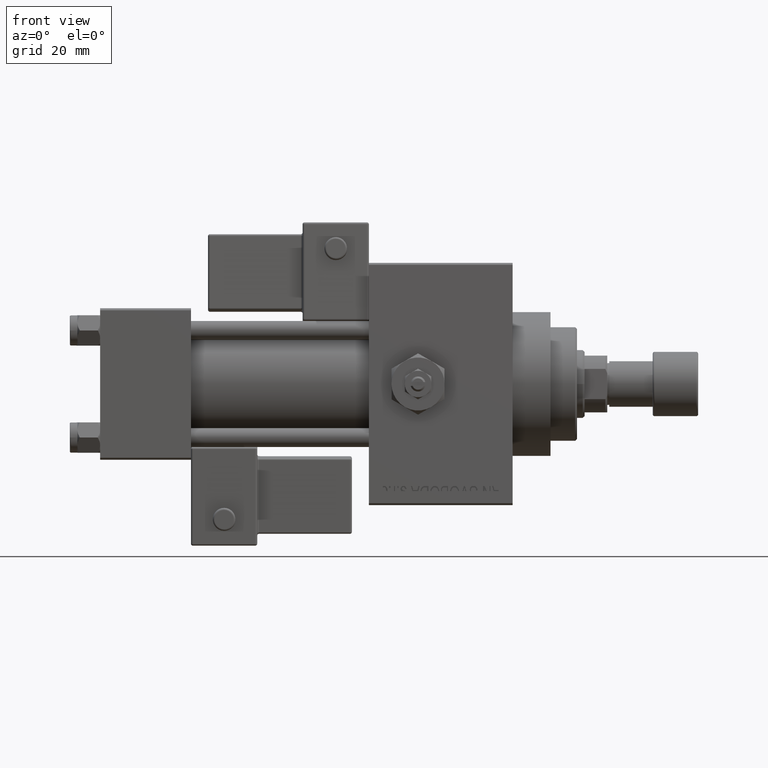
[diagram: clean part render]
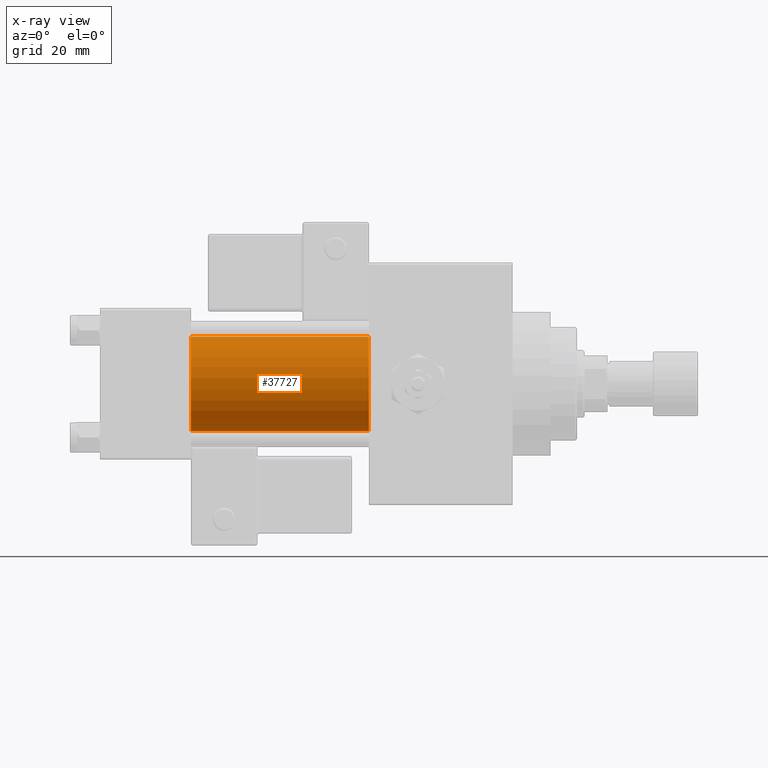
[diagram: x-ray — body ghosted, one internal face saturated and labeled with its STEP entity id]
A machine part, front view, then the same camera in x-ray: the body is ghosted and one INTERNAL B-rep face — a face not visible from any outside direction — is saturated and labeled: STEP entity #37727.
In plain terms, the highlighted cylindrical surface (partial cylindrical patch) has radius 12.5 mm, axis along (-1, -0, -0).
Its self-contained STEP definition (entity closure, byte-faithful):
#356 = VERTEX_POINT ( 'NONE', #11229 ) ;
#1348 = CIRCLE ( 'NONE', #7972, 12.49999999999999645 ) ;
#3030 = DIRECTION ( 'NONE',  ( 1.000000000000000000, 0.000000000000000000, 0.000000000000000000 ) ) ;
#3527 = CARTESIAN_POINT ( 'NONE',  ( 71.00000000000001421, -2.602085213965210642E-15, 0.000000000000000000 ) ) ;
#3976 = ORIENTED_EDGE ( 'NONE', *, *, #26909, .F. ) ;
#6274 = DIRECTION ( 'NONE',  ( -1.000000000000000000, -0.000000000000000000, -0.000000000000000000 ) ) ;
#7147 = DIRECTION ( 'NONE',  ( 0.000000000000000000, 0.000000000000000000, -1.000000000000000000 ) ) ;
#7972 = AXIS2_PLACEMENT_3D ( 'NONE', #3527, #3030, #39179 ) ;
#9218 = EDGE_CURVE ( 'NONE', #27550, #40213, #1348, .T. ) ;
#10141 = ORIENTED_EDGE ( 'NONE', *, *, #9218, .T. ) ;
#11229 = CARTESIAN_POINT ( 'NONE',  ( 24.00000000000000000, -2.602085213965210642E-15, 12.49999999999999645 ) ) ;
#12887 = DIRECTION ( 'NONE',  ( 0.000000000000000000, 0.000000000000000000, 1.000000000000000000 ) ) ;
#14077 = CARTESIAN_POINT ( 'NONE',  ( 71.00000000000001421, -1.071276715031019515E-15, -12.49999999999999645 ) ) ;
#15085 = ORIENTED_EDGE ( 'NONE', *, *, #39363, .T. ) ;
#16110 = DIRECTION ( 'NONE',  ( -1.000000000000000000, -0.000000000000000000, -0.000000000000000000 ) ) ;
#16786 = DIRECTION ( 'NONE',  ( -1.000000000000000000, -0.000000000000000000, -0.000000000000000000 ) ) ;
#17310 = FACE_OUTER_BOUND ( 'NONE', #22735, .T. ) ;
#17823 = CARTESIAN_POINT ( 'NONE',  ( 71.00000000000001421, -2.602085213965210642E-15, 0.000000000000000000 ) ) ;
#18237 = CARTESIAN_POINT ( 'NONE',  ( 71.00000000000001421, -1.071276715031019515E-15, -12.49999999999999645 ) ) ;
#18486 = LINE ( 'NONE', #18237, #34423 ) ;
#20707 = CYLINDRICAL_SURFACE ( 'NONE', #37172, 12.49999999999999645 ) ;
#22735 = EDGE_LOOP ( 'NONE', ( #10141, #15085, #27779, #3976 ) ) ;
#23933 = CARTESIAN_POINT ( 'NONE',  ( 71.00000000000001421, -2.602085213965210642E-15, 12.49999999999999645 ) ) ;
#24708 = AXIS2_PLACEMENT_3D ( 'NONE', #38633, #30811, #7147 ) ;
#25347 = CARTESIAN_POINT ( 'NONE',  ( 71.00000000000001421, -2.602085213965210642E-15, 12.49999999999999645 ) ) ;
#26518 = VERTEX_POINT ( 'NONE', #39677 ) ;
#26909 = EDGE_CURVE ( 'NONE', #27550, #356, #47362, .T. ) ;
#27550 = VERTEX_POINT ( 'NONE', #25347 ) ;
#27779 = ORIENTED_EDGE ( 'NONE', *, *, #50662, .F. ) ;
#29362 = VECTOR ( 'NONE', #16110, 1000.000000000000000 ) ;
#30811 = DIRECTION ( 'NONE',  ( 1.000000000000000000, 0.000000000000000000, 0.000000000000000000 ) ) ;
#34423 = VECTOR ( 'NONE', #6274, 1000.000000000000000 ) ;
#37172 = AXIS2_PLACEMENT_3D ( 'NONE', #17823, #16786, #12887 ) ;
#37727 = ADVANCED_FACE ( 'NONE', ( #17310 ), #20707, .F. ) ;
#38633 = CARTESIAN_POINT ( 'NONE',  ( 24.00000000000000000, -2.602085213965210642E-15, 0.000000000000000000 ) ) ;
#39179 = DIRECTION ( 'NONE',  ( 0.000000000000000000, 0.000000000000000000, -1.000000000000000000 ) ) ;
#39363 = EDGE_CURVE ( 'NONE', #40213, #26518, #18486, .T. ) ;
#39677 = CARTESIAN_POINT ( 'NONE',  ( 24.00000000000000000, -1.071276715031019515E-15, -12.49999999999999645 ) ) ;
#40213 = VERTEX_POINT ( 'NONE', #14077 ) ;
#47362 = LINE ( 'NONE', #23933, #29362 ) ;
#48822 = CIRCLE ( 'NONE', #24708, 12.49999999999999645 ) ;
#50662 = EDGE_CURVE ( 'NONE', #356, #26518, #48822, .T. ) ;